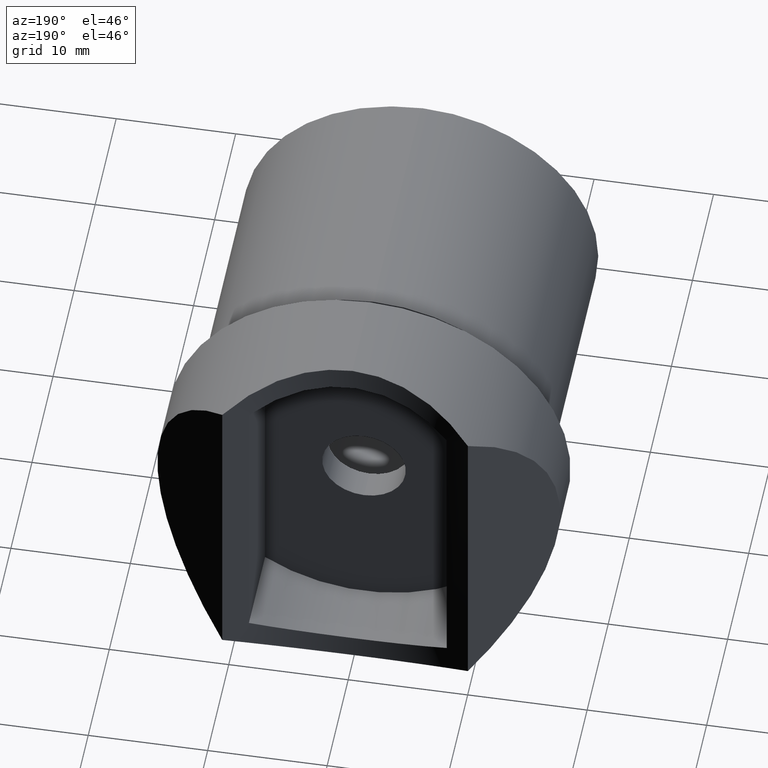
[diagram: clean part render]
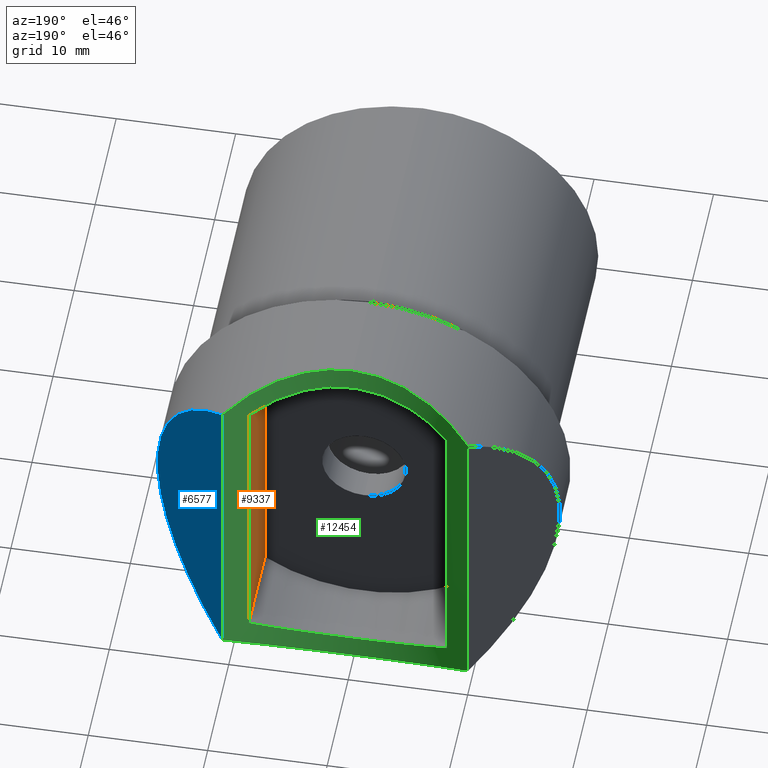
[diagram: same view with three faces highlighted in distinct colors, each labeled with its STEP entity id]
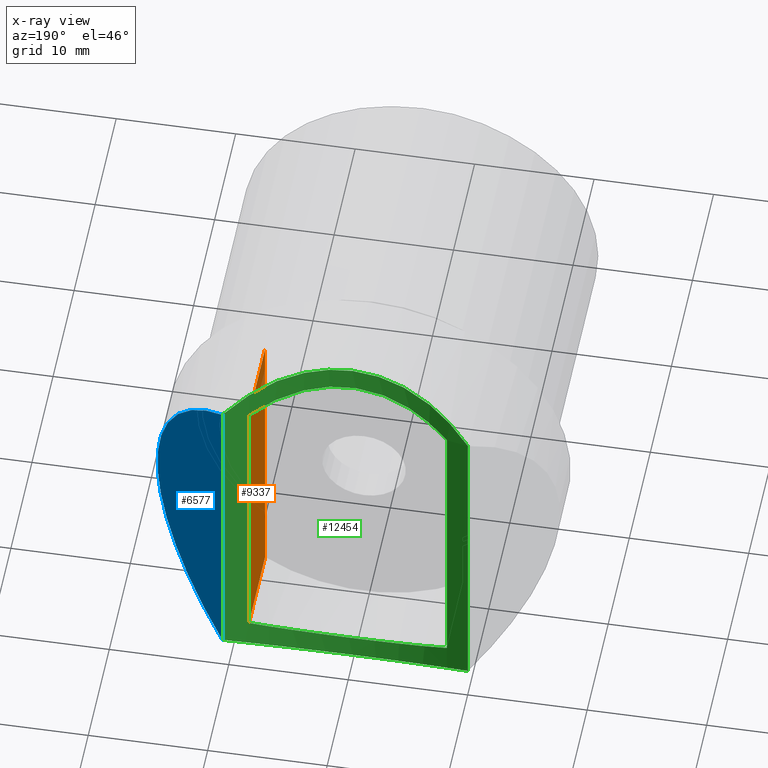
[diagram: x-ray of the same camera — body ghosted, the three highlighted faces saturated]
A machine part, auxiliary view with three faces highlighted in distinct colors.
The next image is the same camera in x-ray (body ghosted, the three faces saturated) — at least one of them is partly hidden behind the body in this view.
Their STEP definitions:

[orange] entity #9337 — the highlighted planar face has unit normal (1, -0, -0).
#1320 = DIRECTION ( 'NONE',  ( 1.407293288778921200E-016, 0.0000000000000000000, 1.000000000000000000 ) ) ;
#1483 = LINE ( 'NONE', #10471, #6133 ) ;
#1551 = CARTESIAN_POINT ( 'NONE',  ( 8.281050529979884400, -34.00578173664475700, 12.32666630196176200 ) ) ;
#1906 = EDGE_CURVE ( 'NONE', #6113, #3571, #2134, .T. ) ;
#1935 = LINE ( 'NONE', #9527, #6290 ) ;
#2134 = LINE ( 'NONE', #3853, #12423 ) ;
#2567 = LINE ( 'NONE', #12250, #4890 ) ;
#2689 = DIRECTION ( 'NONE',  ( 3.374603540597905100E-016, 1.000000000000000000, 0.0000000000000000000 ) ) ;
#3571 = VERTEX_POINT ( 'NONE', #10681 ) ;
#3853 = CARTESIAN_POINT ( 'NONE',  ( 8.281050529979880900, -34.00578173664475700, -12.32666630196176500 ) ) ;
#4171 = ORIENTED_EDGE ( 'NONE', *, *, #11244, .T. ) ;
#4477 = VERTEX_POINT ( 'NONE', #5742 ) ;
#4890 = VECTOR ( 'NONE', #1320, 1000.000000000000000 ) ;
#5485 = DIRECTION ( 'NONE',  ( 3.374603540597905100E-016, 1.000000000000000000, -0.0000000000000000000 ) ) ;
#5742 = CARTESIAN_POINT ( 'NONE',  ( 8.281050529979891600, 2.500000000000002200, 12.32666630196176900 ) ) ;
#6113 = VERTEX_POINT ( 'NONE', #9496 ) ;
#6123 = AXIS2_PLACEMENT_3D ( 'NONE', #1551, #8638, #2689 ) ;
#6133 = VECTOR ( 'NONE', #5485, 1000.000000000000000 ) ;
#6290 = VECTOR ( 'NONE', #12515, 1000.000000000000000 ) ;
#6490 = PLANE ( 'NONE',  #6123 ) ;
#7297 = FACE_OUTER_BOUND ( 'NONE', #9662, .T. ) ;
#7905 = ORIENTED_EDGE ( 'NONE', *, *, #1906, .F. ) ;
#7960 = CARTESIAN_POINT ( 'NONE',  ( 8.281050529979895100, 10.17530401950624300, 12.32666630196176300 ) ) ;
#8638 = DIRECTION ( 'NONE',  ( 1.000000000000000000, -3.374603540597905100E-016, -1.407293288778921200E-016 ) ) ;
#9337 = ADVANCED_FACE ( 'NONE', ( #7297 ), #6490, .F. ) ;
#9496 = CARTESIAN_POINT ( 'NONE',  ( 8.281050529979893300, 2.500000000000002200, -12.32666630196176200 ) ) ;
#9527 = CARTESIAN_POINT ( 'NONE',  ( 8.281050529979895100, 10.17530401950624300, -16.85000000000000100 ) ) ;
#9662 = EDGE_LOOP ( 'NONE', ( #7905, #11167, #4171, #10108 ) ) ;
#10108 = ORIENTED_EDGE ( 'NONE', *, *, #11692, .F. ) ;
#10179 = VERTEX_POINT ( 'NONE', #7960 ) ;
#10471 = CARTESIAN_POINT ( 'NONE',  ( 8.281050529979880900, -34.00578173664475700, 12.32666630196176300 ) ) ;
#10681 = CARTESIAN_POINT ( 'NONE',  ( 8.281050529979896900, 10.17530401950624100, -12.32666630196176500 ) ) ;
#11167 = ORIENTED_EDGE ( 'NONE', *, *, #11503, .T. ) ;
#11244 = EDGE_CURVE ( 'NONE', #4477, #10179, #1483, .T. ) ;
#11503 = EDGE_CURVE ( 'NONE', #6113, #4477, #2567, .T. ) ;
#11611 = DIRECTION ( 'NONE',  ( 3.374603540597905100E-016, 1.000000000000000000, -0.0000000000000000000 ) ) ;
#11692 = EDGE_CURVE ( 'NONE', #3571, #10179, #1935, .T. ) ;
#12250 = CARTESIAN_POINT ( 'NONE',  ( 8.281050529979896900, 2.500000000000002200, 12.32666630196176200 ) ) ;
#12423 = VECTOR ( 'NONE', #11611, 1000.000000000000000 ) ;
#12515 = DIRECTION ( 'NONE',  ( -0.0000000000000000000, -0.0000000000000000000, 1.000000000000000000 ) ) ;

[blue] entity #6577 — the highlighted planar face has unit normal (-0.7034, -0.7108, 0).
#467 = FACE_OUTER_BOUND ( 'NONE', #1510, .T. ) ;
#546 = CARTESIAN_POINT ( 'NONE',  ( 16.85000000000000100, 5.000000000000000000, -16.85000000000000100 ) ) ;
#1008 = CARTESIAN_POINT ( 'NONE',  ( 19.80858279631081900, 2.072471288782573600, -6.012693583808093000 ) ) ;
#1510 = EDGE_LOOP ( 'NONE', ( #4468, #2133 ) ) ;
#1574 = DIRECTION ( 'NONE',  ( 0.7108274590929374300, -0.7033664218595300200, 0.0000000000000000000 ) ) ;
#1904 = VERTEX_POINT ( 'NONE', #4695 ) ;
#2072 = CARTESIAN_POINT ( 'NONE',  ( 10.28105052997990000, 11.50000000000000000, -16.85000000000000100 ) ) ;
#2107 = AXIS2_PLACEMENT_3D ( 'NONE', #546, #7511, #1574 ) ;
#2133 = ORIENTED_EDGE ( 'NONE', *, *, #7659, .T. ) ;
#2816 = VECTOR ( 'NONE', #11253, 1000.000000000000000 ) ;
#3547 = CARTESIAN_POINT ( 'NONE',  ( 10.28105052997990000, 11.50000000000000000, 13.35000000000000100 ) ) ;
#4068 = CARTESIAN_POINT ( 'NONE',  ( 10.28105052997990000, 11.50000000000000000, -13.35000000000000100 ) ) ;
#4468 = ORIENTED_EDGE ( 'NONE', *, *, #8585, .F. ) ;
#4695 = CARTESIAN_POINT ( 'NONE',  ( 10.28105052997990000, 11.50000000000000000, -13.35000000000000100 ) ) ;
#5041 = CARTESIAN_POINT ( 'NONE',  ( 19.80858279631082300, 2.072471288782570000, 6.012693583808089500 ) ) ;
#5435 = PLANE ( 'NONE',  #2107 ) ;
#6577 = ADVANCED_FACE ( 'NONE', ( #467 ), #5435, .F. ) ;
#7511 = DIRECTION ( 'NONE',  ( -0.7033664218595300200, -0.7108274590929374300, 0.0000000000000000000 ) ) ;
#7659 = EDGE_CURVE ( 'NONE', #1904, #11682, #11065, .T. ) ;
#8585 = EDGE_CURVE ( 'NONE', #1904, #11682, #11373, .T. ) ;
#11065 = LINE ( 'NONE', #2072, #2816 ) ;
#11253 = DIRECTION ( 'NONE',  ( -0.0000000000000000000, -0.0000000000000000000, 1.000000000000000000 ) ) ;
#11373 =( BOUNDED_CURVE ( )  B_SPLINE_CURVE ( 3, ( #4068, #1008, #5041, #12031 ),
 .UNSPECIFIED., .F., .F. ) 
 B_SPLINE_CURVE_WITH_KNOTS ( ( 4, 4 ),
 ( 5.368640608192868600, 7.197730006166303900 ),
 .UNSPECIFIED. ) 
 CURVE ( )  GEOMETRIC_REPRESENTATION_ITEM ( )  RATIONAL_B_SPLINE_CURVE ( ( 1.000000000000000000, 0.7401009111762570900, 0.7401009111762570900, 1.000000000000000000 ) ) 
 REPRESENTATION_ITEM ( '' )  );
#11682 = VERTEX_POINT ( 'NONE', #3547 ) ;
#12031 = CARTESIAN_POINT ( 'NONE',  ( 10.28105052997990000, 11.50000000000000000, 13.35000000000000100 ) ) ;

[green] entity #12454 — the highlighted cylindrical surface (partial cylindrical patch) has radius 16.85 mm, axis along (-0, -0, 1).
#94 = EDGE_LOOP ( 'NONE', ( #10262, #5250, #8230, #10867, #8527, #8843 ) ) ;
#113 = CARTESIAN_POINT ( 'NONE',  ( -8.281050529979911100, 10.17530401950625000, -12.32666630196176300 ) ) ;
#158 = CARTESIAN_POINT ( 'NONE',  ( 0.7518075709139476800, 7.999433541774084100, -14.85064274894787700 ) ) ;
#294 = CARTESIAN_POINT ( 'NONE',  ( -10.28105052997990900, 11.50000000000000700, 13.35000000000000100 ) ) ;
#409 = ORIENTED_EDGE ( 'NONE', *, *, #7416, .T. ) ;
#413 =( BOUNDED_CURVE ( )  B_SPLINE_CURVE ( 3, ( #6170, #7180, #4273, #11235 ),
 .UNSPECIFIED., .F., .T. ) 
 B_SPLINE_CURVE_WITH_KNOTS ( ( 4, 4 ),
 ( 5.626933679371406400, 6.283185307179586200 ),
 .UNSPECIFIED. ) 
 CURVE ( )  GEOMETRIC_REPRESENTATION_ITEM ( )  RATIONAL_B_SPLINE_CURVE ( ( 1.000000000000000000, 0.9644319990599888900, 0.9644319990599888900, 1.000000000000000000 ) ) 
 REPRESENTATION_ITEM ( '' )  );
#460 = CARTESIAN_POINT ( 'NONE',  ( 0.0000000000000000000, 24.85000000000000100, -16.85000000000000100 ) ) ;
#574 = B_SPLINE_CURVE_WITH_KNOTS ( 'NONE', 3,
 ( #113, #1093, #1128, #8102, #2124, #9103, #3131, #10110, #4132, #11091, #5128, #12098, #6116, #158, #7123, #1168, #8143, #2169, #9149, #3169, #10153, #4173, #11126, #5167, #12147, #6154 ),
 .UNSPECIFIED., .F., .F.,
 ( 4, 2, 2, 2, 2, 2, 2, 2, 2, 2, 2, 2, 4 ),
 ( 1.274756208291111100E-017, 0.002270670921372391400, 0.003406006382058581900, 0.004541341842744773200, 0.006812012764117148100, 0.007947348224803333800, 0.009082683685489522200, 0.01135335460686189500, 0.01248869006754808000, 0.01362402552823426500, 0.01589469644960664000, 0.01703003191029282800, 0.01816536737097901300 ),
 .UNSPECIFIED. ) ;
#1001 = EDGE_CURVE ( 'NONE', #10179, #4854, #6079, .T. ) ;
#1093 = CARTESIAN_POINT ( 'NONE',  ( -7.705679610211244100, 9.850617520622810400, -12.71320030421078000 ) ) ;
#1128 = CARTESIAN_POINT ( 'NONE',  ( -7.100328876308623200, 9.553414002466658100, -13.06179394104984900 ) ) ;
#1168 = CARTESIAN_POINT ( 'NONE',  ( 2.618224113248293500, 8.200446367603630500, -14.62218759211358000 ) ) ;
#1904 = VERTEX_POINT ( 'NONE', #4695 ) ;
#1935 = LINE ( 'NONE', #9527, #6290 ) ;
#2072 = CARTESIAN_POINT ( 'NONE',  ( 10.28105052997990000, 11.50000000000000000, -16.85000000000000100 ) ) ;
#2124 = CARTESIAN_POINT ( 'NONE',  ( -5.815411321565181700, 9.031340718010167000, -13.66873924447080100 ) ) ;
#2169 = CARTESIAN_POINT ( 'NONE',  ( 3.718148061747713400, 8.411108371115085800, -14.38189237094042400 ) ) ;
#2242 = FACE_BOUND ( 'NONE', #11895, .T. ) ;
#2709 = CARTESIAN_POINT ( 'NONE',  ( 2.063529856563290200E-015, 8.000000000000000000, 16.85000000000000100 ) ) ;
#2816 = VECTOR ( 'NONE', #11253, 1000.000000000000000 ) ;
#3131 = CARTESIAN_POINT ( 'NONE',  ( -4.796137954365677000, 8.692848254836667000, -14.05903603582196300 ) ) ;
#3169 = CARTESIAN_POINT ( 'NONE',  ( 5.132919564012487600, 8.784317496882662700, -13.95412941298106800 ) ) ;
#3258 = EDGE_CURVE ( 'NONE', #11939, #8686, #9036, .T. ) ;
#3277 = CARTESIAN_POINT ( 'NONE',  ( -7.993018389102465100, 10.01276513515491800, 12.52016620326798500 ) ) ;
#3525 = EDGE_CURVE ( 'NONE', #11682, #10932, #4107, .T. ) ;
#3547 = CARTESIAN_POINT ( 'NONE',  ( 10.28105052997990000, 11.50000000000000000, 13.35000000000000100 ) ) ;
#3571 = VERTEX_POINT ( 'NONE', #10681 ) ;
#3608 = DIRECTION ( 'NONE',  ( 0.0000000000000000000, 0.0000000000000000000, -1.000000000000000000 ) ) ;
#3642 = CARTESIAN_POINT ( 'NONE',  ( 3.014916833049884600, 8.255180882271229600, 14.55991091064249200 ) ) ;
#3721 = CARTESIAN_POINT ( 'NONE',  ( 10.28105052997990000, 11.50000000000000000, -13.35000000000000100 ) ) ;
#3758 = CARTESIAN_POINT ( 'NONE',  ( 7.307074478862047900, 9.209693029476204300, -15.64030697052379700 ) ) ;
#3807 = CARTESIAN_POINT ( 'NONE',  ( 4.796137954365677900, 8.692848254836663500, 14.05903603582195600 ) ) ;
#3830 = CARTESIAN_POINT ( 'NONE',  ( 0.0000000000000000000, 8.000000000000000000, -16.85000000000000100 ) ) ;
#3833 = CARTESIAN_POINT ( 'NONE',  ( -6.769802633580078500, 9.415830815747027000, 13.22194660725115000 ) ) ;
#3843 = CARTESIAN_POINT ( 'NONE',  ( 3.753670146916537200, 8.000000000000003600, -16.84999999999999800 ) ) ;
#3897 = CARTESIAN_POINT ( 'NONE',  ( -10.28105052997990900, 11.50000000000000700, -16.85000000000000100 ) ) ;
#4007 = CARTESIAN_POINT ( 'NONE',  ( -3.753670146916541700, 8.000000000000003600, 16.84999999999999400 ) ) ;
#4107 =( BOUNDED_CURVE ( )  B_SPLINE_CURVE ( 3, ( #11148, #11164, #11178, #11132 ),
 .UNSPECIFIED., .F., .T. ) 
 B_SPLINE_CURVE_WITH_KNOTS ( ( 4, 4 ),
 ( 5.626933679371407300, 6.283185307179586200 ),
 .UNSPECIFIED. ) 
 CURVE ( )  GEOMETRIC_REPRESENTATION_ITEM ( )  RATIONAL_B_SPLINE_CURVE ( ( 1.000000000000000000, 0.9644319990599890000, 0.9644319990599890000, 1.000000000000000000 ) ) 
 REPRESENTATION_ITEM ( '' )  );
#4132 = CARTESIAN_POINT ( 'NONE',  ( -3.014916833049884100, 8.255180882271226000, -14.55991091064249300 ) ) ;
#4155 = EDGE_CURVE ( 'NONE', #9429, #1904, #5294, .T. ) ;
#4173 = CARTESIAN_POINT ( 'NONE',  ( 6.769802633580067800, 9.415830815747023400, -13.22194660725115000 ) ) ;
#4273 = CARTESIAN_POINT ( 'NONE',  ( -3.753670146916539900, 8.000000000000003600, -16.84999999999999400 ) ) ;
#4430 =( BOUNDED_CURVE ( )  B_SPLINE_CURVE ( 3, ( #6908, #4007, #4997, #11975 ),
 .UNSPECIFIED., .F., .F. ) 
 B_SPLINE_CURVE_WITH_KNOTS ( ( 4, 4 ),
 ( 0.0000000000000000000, 0.6562516278081799200 ),
 .UNSPECIFIED. ) 
 CURVE ( )  GEOMETRIC_REPRESENTATION_ITEM ( )  RATIONAL_B_SPLINE_CURVE ( ( 1.000000000000000000, 0.9644319990599888900, 0.9644319990599888900, 1.000000000000000000 ) ) 
 REPRESENTATION_ITEM ( '' )  );
#4488 = CARTESIAN_POINT ( 'NONE',  ( -8.281050529979909300, 10.17530401950625300, 12.32666630196176300 ) ) ;
#4574 = CYLINDRICAL_SURFACE ( 'NONE', #6703, 16.85000000000000100 ) ;
#4695 = CARTESIAN_POINT ( 'NONE',  ( 10.28105052997990000, 11.50000000000000000, -13.35000000000000100 ) ) ;
#4815 = CARTESIAN_POINT ( 'NONE',  ( -7.085162093813298000, 9.558216238719234400, 13.05554117361250200 ) ) ;
#4854 = VERTEX_POINT ( 'NONE', #4488 ) ;
#4997 = CARTESIAN_POINT ( 'NONE',  ( -7.307074478862051400, 9.209693029476202500, 15.64030697052379700 ) ) ;
#5002 = VECTOR ( 'NONE', #3608, 1000.000000000000000 ) ;
#5007 = CARTESIAN_POINT ( 'NONE',  ( -8.281050529979909300, 10.17530401950625300, 12.32666630196176300 ) ) ;
#5128 = CARTESIAN_POINT ( 'NONE',  ( -1.534177097549879900, 8.065720847034505400, -14.77539244436772300 ) ) ;
#5155 = CARTESIAN_POINT ( 'NONE',  ( 7.100328876308624100, 9.553414002466654500, 13.06179394104983700 ) ) ;
#5167 = CARTESIAN_POINT ( 'NONE',  ( 7.696449911323713700, 9.856573731802857500, -12.70477610955758200 ) ) ;
#5250 = ORIENTED_EDGE ( 'NONE', *, *, #6819, .F. ) ;
#5294 =( BOUNDED_CURVE ( )  B_SPLINE_CURVE ( 3, ( #3830, #3843, #3758, #3721 ),
 .UNSPECIFIED., .F., .F. ) 
 B_SPLINE_CURVE_WITH_KNOTS ( ( 4, 4 ),
 ( 0.0000000000000000000, 0.6562516278081792500 ),
 .UNSPECIFIED. ) 
 CURVE ( )  GEOMETRIC_REPRESENTATION_ITEM ( )  RATIONAL_B_SPLINE_CURVE ( ( 1.000000000000000000, 0.9644319990599890000, 0.9644319990599890000, 1.000000000000000000 ) ) 
 REPRESENTATION_ITEM ( '' )  );
#5296 = CARTESIAN_POINT ( 'NONE',  ( -7.696449911323728800, 9.856573731802861000, 12.70477610955758300 ) ) ;
#5375 = CARTESIAN_POINT ( 'NONE',  ( -8.281050529979911100, 10.17530401950625000, -12.32666630196176300 ) ) ;
#5606 = DIRECTION ( 'NONE',  ( -0.0000000000000000000, -0.0000000000000000000, 1.000000000000000000 ) ) ;
#5776 = CARTESIAN_POINT ( 'NONE',  ( 3.736855085054447300, 8.403286612594325100, 14.39118300240436100 ) ) ;
#6079 = B_SPLINE_CURVE_WITH_KNOTS ( 'NONE', 3,
 ( #11861, #12872, #5155, #11511, #11529, #12955, #3807, #5776, #3642, #11693, #11707, #11231, #11250, #11265, #11388, #11460, #11419, #12057, #12175, #12187, #12213, #3833, #4815, #5296, #3277, #5007 ),
 .UNSPECIFIED., .F., .F.,
 ( 4, 2, 2, 2, 2, 2, 2, 2, 2, 2, 2, 2, 4 ),
 ( 1.734723475976807100E-018, 0.002270670921372384400, 0.003406006382058572300, 0.004541341842744761100, 0.006812012764117139500, 0.007947348224803326900, 0.009082683685489515200, 0.01135335460686189200, 0.01248869006754808200, 0.01362402552823427000, 0.01589469644960664300, 0.01703003191029283500, 0.01816536737097902000 ),
 .UNSPECIFIED. ) ;
#6116 = CARTESIAN_POINT ( 'NONE',  ( -0.3947893880161020800, 8.000290284820843900, -14.84967061955417700 ) ) ;
#6141 = EDGE_CURVE ( 'NONE', #4854, #12409, #10321, .T. ) ;
#6154 = CARTESIAN_POINT ( 'NONE',  ( 8.281050529979896900, 10.17530401950624100, -12.32666630196176500 ) ) ;
#6170 = CARTESIAN_POINT ( 'NONE',  ( -10.28105052997990900, 11.50000000000000700, -13.35000000000000100 ) ) ;
#6290 = VECTOR ( 'NONE', #12515, 1000.000000000000000 ) ;
#6385 = DIRECTION ( 'NONE',  ( -0.0000000000000000000, -0.0000000000000000000, 1.000000000000000000 ) ) ;
#6421 = DIRECTION ( 'NONE',  ( 1.000000000000000000, 0.0000000000000000000, 0.0000000000000000000 ) ) ;
#6462 = EDGE_CURVE ( 'NONE', #11939, #9429, #413, .T. ) ;
#6703 = AXIS2_PLACEMENT_3D ( 'NONE', #460, #6385, #6421 ) ;
#6819 = EDGE_CURVE ( 'NONE', #10932, #8686, #4430, .T. ) ;
#6908 = CARTESIAN_POINT ( 'NONE',  ( 2.063529856563290200E-015, 8.000000000000000000, 16.85000000000000100 ) ) ;
#7123 = CARTESIAN_POINT ( 'NONE',  ( 1.504825208362929200, 8.050626923803767100, -14.79262894271656700 ) ) ;
#7180 = CARTESIAN_POINT ( 'NONE',  ( -7.307074478862055000, 9.209693029476204300, -15.64030697052379400 ) ) ;
#7416 = EDGE_CURVE ( 'NONE', #12409, #3571, #574, .T. ) ;
#7572 = ORIENTED_EDGE ( 'NONE', *, *, #1001, .T. ) ;
#7659 = EDGE_CURVE ( 'NONE', #1904, #11682, #11065, .T. ) ;
#7728 = ORIENTED_EDGE ( 'NONE', *, *, #6141, .T. ) ;
#7960 = CARTESIAN_POINT ( 'NONE',  ( 8.281050529979895100, 10.17530401950624300, 12.32666630196176300 ) ) ;
#7990 = CARTESIAN_POINT ( 'NONE',  ( -10.28105052997990900, 11.50000000000000700, -13.35000000000000100 ) ) ;
#8102 = CARTESIAN_POINT ( 'NONE',  ( -6.142846727027894400, 9.155817561237491000, -13.52455514483896000 ) ) ;
#8143 = CARTESIAN_POINT ( 'NONE',  ( 2.986657233819427500, 8.262605341314902300, -14.55140308513466400 ) ) ;
#8230 = ORIENTED_EDGE ( 'NONE', *, *, #3525, .F. ) ;
#8527 = ORIENTED_EDGE ( 'NONE', *, *, #4155, .F. ) ;
#8683 = CARTESIAN_POINT ( 'NONE',  ( 0.0000000000000000000, 8.000000000000000000, -16.85000000000000100 ) ) ;
#8686 = VERTEX_POINT ( 'NONE', #294 ) ;
#8843 = ORIENTED_EDGE ( 'NONE', *, *, #6462, .F. ) ;
#9036 = LINE ( 'NONE', #3897, #9357 ) ;
#9103 = CARTESIAN_POINT ( 'NONE',  ( -5.142757039050105800, 8.800045471840983100, -13.93576303650522700 ) ) ;
#9149 = CARTESIAN_POINT ( 'NONE',  ( 4.078808096990951700, 8.497065893445322300, -14.28360414038181700 ) ) ;
#9357 = VECTOR ( 'NONE', #5606, 1000.000000000000000 ) ;
#9429 = VERTEX_POINT ( 'NONE', #8683 ) ;
#9527 = CARTESIAN_POINT ( 'NONE',  ( 8.281050529979895100, 10.17530401950624300, -16.85000000000000100 ) ) ;
#10110 = CARTESIAN_POINT ( 'NONE',  ( -3.736855085054445500, 8.403286612594319700, -14.39118300240436800 ) ) ;
#10153 = CARTESIAN_POINT ( 'NONE',  ( 5.804462943858024600, 9.015988052408625100, -13.68726083129456100 ) ) ;
#10179 = VERTEX_POINT ( 'NONE', #7960 ) ;
#10198 = FACE_OUTER_BOUND ( 'NONE', #94, .T. ) ;
#10262 = ORIENTED_EDGE ( 'NONE', *, *, #3258, .T. ) ;
#10321 = LINE ( 'NONE', #10575, #5002 ) ;
#10575 = CARTESIAN_POINT ( 'NONE',  ( -8.281050529979911100, 10.17530401950625000, -16.85000000000000100 ) ) ;
#10681 = CARTESIAN_POINT ( 'NONE',  ( 8.281050529979896900, 10.17530401950624100, -12.32666630196176500 ) ) ;
#10867 = ORIENTED_EDGE ( 'NONE', *, *, #7659, .F. ) ;
#10932 = VERTEX_POINT ( 'NONE', #2709 ) ;
#11065 = LINE ( 'NONE', #2072, #2816 ) ;
#11091 = CARTESIAN_POINT ( 'NONE',  ( -1.907444131472225900, 8.104165647827573000, -14.73172475287010200 ) ) ;
#11126 = CARTESIAN_POINT ( 'NONE',  ( 7.085162093813286400, 9.558216238719227300, -13.05554117361250000 ) ) ;
#11132 = CARTESIAN_POINT ( 'NONE',  ( 2.063529856563290200E-015, 8.000000000000000000, 16.85000000000000100 ) ) ;
#11148 = CARTESIAN_POINT ( 'NONE',  ( 10.28105052997990000, 11.50000000000000000, 13.35000000000000100 ) ) ;
#11164 = CARTESIAN_POINT ( 'NONE',  ( 7.307074478862047900, 9.209693029476204300, 15.64030697052379700 ) ) ;
#11178 = CARTESIAN_POINT ( 'NONE',  ( 3.753670146916535400, 8.000000000000003600, 16.84999999999999800 ) ) ;
#11231 = CARTESIAN_POINT ( 'NONE',  ( 0.7790580080186722000, 8.013765424791065700, 14.83438538908394500 ) ) ;
#11235 = CARTESIAN_POINT ( 'NONE',  ( 0.0000000000000000000, 8.000000000000000000, -16.85000000000000100 ) ) ;
#11250 = CARTESIAN_POINT ( 'NONE',  ( 0.3947893880160990900, 8.000290284820843900, 14.84967061955417300 ) ) ;
#11253 = DIRECTION ( 'NONE',  ( -0.0000000000000000000, -0.0000000000000000000, 1.000000000000000000 ) ) ;
#11265 = CARTESIAN_POINT ( 'NONE',  ( -0.7518075709139520100, 7.999433541774084100, 14.85064274894787700 ) ) ;
#11335 = ORIENTED_EDGE ( 'NONE', *, *, #11692, .T. ) ;
#11388 = CARTESIAN_POINT ( 'NONE',  ( -1.504825208362933400, 8.050626923803765300, 14.79262894271656500 ) ) ;
#11419 = CARTESIAN_POINT ( 'NONE',  ( -2.986657233819435900, 8.262605341314904100, 14.55140308513466600 ) ) ;
#11460 = CARTESIAN_POINT ( 'NONE',  ( -2.618224113248299300, 8.200446367603632300, 14.62218759211358200 ) ) ;
#11511 = CARTESIAN_POINT ( 'NONE',  ( 6.142846727027894400, 9.155817561237492800, 13.52455514483895300 ) ) ;
#11529 = CARTESIAN_POINT ( 'NONE',  ( 5.815411321565183500, 9.031340718010170600, 13.66873924447079600 ) ) ;
#11682 = VERTEX_POINT ( 'NONE', #3547 ) ;
#11692 = EDGE_CURVE ( 'NONE', #3571, #10179, #1935, .T. ) ;
#11693 = CARTESIAN_POINT ( 'NONE',  ( 1.907444131472225500, 8.104165647827574800, 14.73172475287010200 ) ) ;
#11707 = CARTESIAN_POINT ( 'NONE',  ( 1.534177097549879400, 8.065720847034509000, 14.77539244436772100 ) ) ;
#11861 = CARTESIAN_POINT ( 'NONE',  ( 8.281050529979895100, 10.17530401950624300, 12.32666630196176300 ) ) ;
#11895 = EDGE_LOOP ( 'NONE', ( #7728, #409, #11335, #7572 ) ) ;
#11939 = VERTEX_POINT ( 'NONE', #7990 ) ;
#11975 = CARTESIAN_POINT ( 'NONE',  ( -10.28105052997990900, 11.50000000000000700, 13.35000000000000100 ) ) ;
#12057 = CARTESIAN_POINT ( 'NONE',  ( -3.718148061747720900, 8.411108371115089400, 14.38189237094041900 ) ) ;
#12098 = CARTESIAN_POINT ( 'NONE',  ( -0.7790580080186739800, 8.013765424791067500, -14.83438538908395200 ) ) ;
#12147 = CARTESIAN_POINT ( 'NONE',  ( 7.993018389102456200, 10.01276513515491100, -12.52016620326799100 ) ) ;
#12175 = CARTESIAN_POINT ( 'NONE',  ( -4.078808096990959700, 8.497065893445316900, 14.28360414038181500 ) ) ;
#12187 = CARTESIAN_POINT ( 'NONE',  ( -5.132919564012499200, 8.784317496882662700, 13.95412941298106600 ) ) ;
#12213 = CARTESIAN_POINT ( 'NONE',  ( -5.804462943858034400, 9.015988052408626900, 13.68726083129455700 ) ) ;
#12409 = VERTEX_POINT ( 'NONE', #5375 ) ;
#12454 = ADVANCED_FACE ( 'NONE', ( #2242, #10198 ), #4574, .F. ) ;
#12515 = DIRECTION ( 'NONE',  ( -0.0000000000000000000, -0.0000000000000000000, 1.000000000000000000 ) ) ;
#12872 = CARTESIAN_POINT ( 'NONE',  ( 7.705679610211236200, 9.850617520622812200, 12.71320030421077400 ) ) ;
#12955 = CARTESIAN_POINT ( 'NONE',  ( 5.142757039050107600, 8.800045471840984800, 13.93576303650522000 ) ) ;